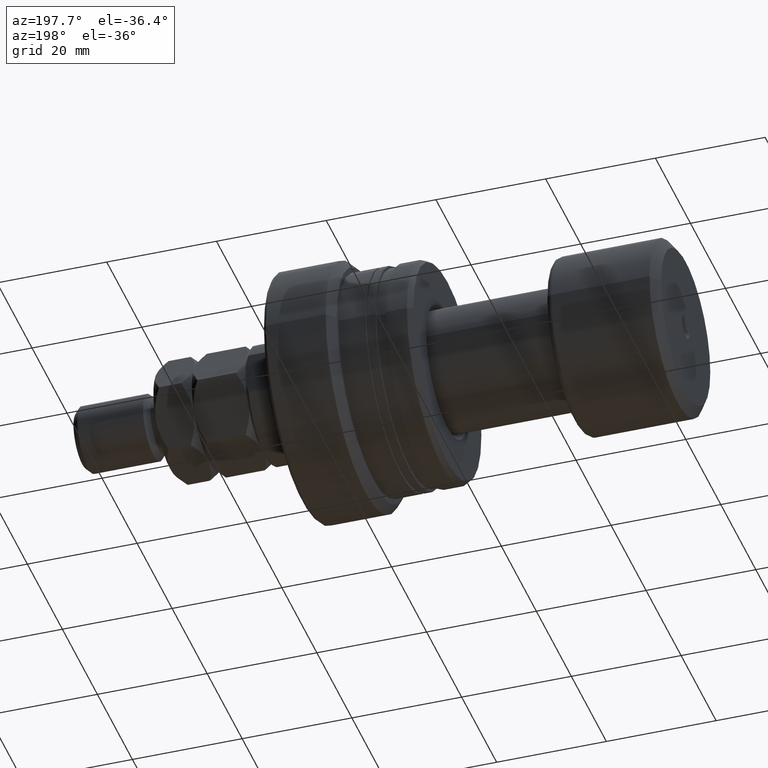
[diagram: clean part render]
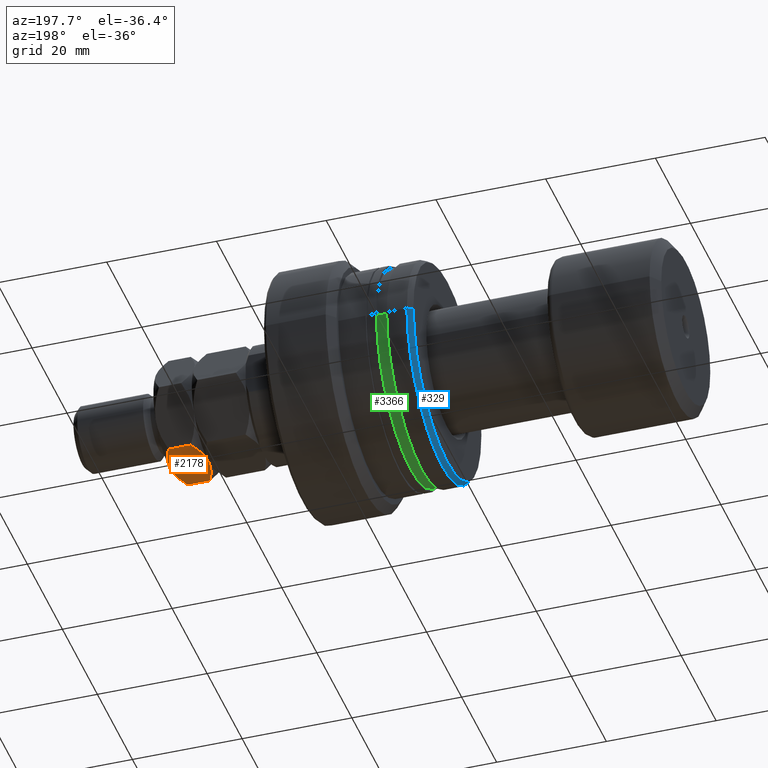
[diagram: same view with three faces highlighted in distinct colors, each labeled with its STEP entity id]
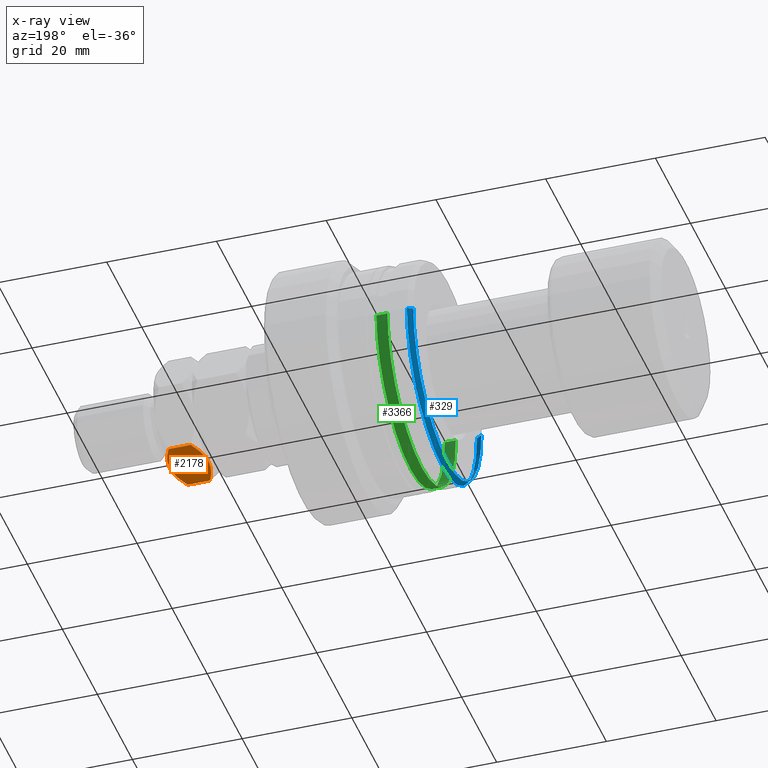
[diagram: x-ray of the same camera — body ghosted, the three highlighted faces saturated]
A machine part, auxiliary view with three faces highlighted in distinct colors.
The next image is the same camera in x-ray (body ghosted, the three faces saturated) — at least one of them is partly hidden behind the body in this view.
Their STEP definitions:

[orange] entity #2178 — the highlighted planar face has unit normal (0, -0, 1).
#1 = DIRECTION ( 'NONE',  ( 1.581383788144378447E-16, -1.000000000000000000, 0.000000000000000000 ) ) ;
#25 = DIRECTION ( 'NONE',  ( -1.000000000000000000, -1.581383788144378447E-16, 0.000000000000000000 ) ) ;
#53 = CARTESIAN_POINT ( 'NONE',  ( 9.499999999999994671, 1.502314598737158637E-15, 17.00000000000000000 ) ) ;
#84 = CARTESIAN_POINT ( 'NONE',  ( 9.499999999999992895, 5.484827557301444223, 11.46965511460288134 ) ) ;
#208 = AXIS2_PLACEMENT_3D ( 'NONE', #3439, #25, #1 ) ;
#248 = ORIENTED_EDGE ( 'NONE', *, *, #1904, .F. ) ;
#337 = CARTESIAN_POINT ( 'NONE',  ( 9.499999999999996447, -0.4761117316842318758, 17.00000000000000355 ) ) ;
#356 = PLANE ( 'NONE',  #208 ) ;
#406 = EDGE_CURVE ( 'NONE', #2852, #1414, #1776, .T. ) ;
#489 = CARTESIAN_POINT ( 'NONE',  ( 9.499999999999992895, 5.484827557301444223, 17.00000000000000000 ) ) ;
#602 = CARTESIAN_POINT ( 'NONE',  ( 9.499999999999994671, -5.484827557301442447, 15.53034488539711688 ) ) ;
#625 = CARTESIAN_POINT ( 'NONE',  ( 9.499999999999994671, -3.739300393387253951, 10.70136854772636070 ) ) ;
#642 = CARTESIAN_POINT ( 'NONE',  ( 9.499999999999994671, -5.484827557301443335, 11.46965511460288312 ) ) ;
#662 = CARTESIAN_POINT ( 'NONE',  ( 9.499999999999998224, -3.284280073076859985, 10.54188890834167758 ) ) ;
#683 = CARTESIAN_POINT ( 'NONE',  ( 9.499999999999994671, -5.058804922144361171, 11.25664379702434204 ) ) ;
#688 = ORIENTED_EDGE ( 'NONE', *, *, #3239, .F. ) ;
#696 = CARTESIAN_POINT ( 'NONE',  ( 9.499999999999996447, 0.000000000000000000, 10.00000000000000000 ) ) ;
#738 = CARTESIAN_POINT ( 'NONE',  ( 9.499999999999994671, -5.484827557301443335, 17.00000000000000000 ) ) ;
#799 = CARTESIAN_POINT ( 'NONE',  ( 9.499999999999992895, 3.284280073076856876, 16.45811109165832065 ) ) ;
#813 = VERTEX_POINT ( 'NONE', #984 ) ;
#819 = CARTESIAN_POINT ( 'NONE',  ( 9.499999999999994671, 1.895392204582990958, 16.85351563493426141 ) ) ;
#855 = LINE ( 'NONE', #489, #3984 ) ;
#892 = B_SPLINE_CURVE_WITH_KNOTS ( 'NONE', 3,
 ( #1580, #2498, #2471, #662, #625, #952, #683, #1883 ),
 .UNSPECIFIED., .F., .F.,
 ( 4, 2, 2, 4 ),
 ( 0.02139070057665824059, 0.02425837263787778211, 0.02569220866848755114, 0.02712604469909732363 ),
 .UNSPECIFIED. ) ;
#940 = B_SPLINE_CURVE_WITH_KNOTS ( 'NONE', 3,
 ( #602, #2191, #3997, #988, #2231, #1870, #3119, #3102, #337, #1854 ),
 .UNSPECIFIED., .F., .F.,
 ( 4, 2, 2, 2, 4 ),
 ( 0.01567844649877152621, 0.01710651001824320394, 0.01853457353771487820, 0.01996263705718655593, 0.02139070057665823366 ),
 .UNSPECIFIED. ) ;
#952 = CARTESIAN_POINT ( 'NONE',  ( 9.499999999999996447, -4.625461644961930574, 11.05843019788303749 ) ) ;
#968 = CARTESIAN_POINT ( 'NONE',  ( 9.499999999999992895, 5.484827557301444223, 11.46965511460288134 ) ) ;
#984 = CARTESIAN_POINT ( 'NONE',  ( 9.499999999999994671, -5.484827557301442447, 15.53034488539711688 ) ) ;
#988 = CARTESIAN_POINT ( 'NONE',  ( 9.499999999999991118, -3.733428111434933250, 16.30082488061093215 ) ) ;
#1082 = CARTESIAN_POINT ( 'NONE',  ( 9.499999999999991118, 0.4761117316842319869, 9.999999999999992895 ) ) ;
#1206 = CARTESIAN_POINT ( 'NONE',  ( 9.499999999999992895, 5.484827557301444223, 15.53034488539711866 ) ) ;
#1207 = CARTESIAN_POINT ( 'NONE',  ( 9.499999999999996447, 0.000000000000000000, 10.00000000000000000 ) ) ;
#1264 = ORIENTED_EDGE ( 'NONE', *, *, #406, .F. ) ;
#1284 = EDGE_CURVE ( 'NONE', #813, #1821, #3296, .T. ) ;
#1414 = VERTEX_POINT ( 'NONE', #1206 ) ;
#1426 = DIRECTION ( 'NONE',  ( -0.000000000000000000, -0.000000000000000000, -1.000000000000000000 ) ) ;
#1469 = DIRECTION ( 'NONE',  ( -0.000000000000000000, -0.000000000000000000, -1.000000000000000000 ) ) ;
#1580 = CARTESIAN_POINT ( 'NONE',  ( 9.499999999999996447, 0.000000000000000000, 10.00000000000000000 ) ) ;
#1637 = CARTESIAN_POINT ( 'NONE',  ( 9.499999999999992895, 5.058637179188067101, 11.25655992554617946 ) ) ;
#1668 = B_SPLINE_CURVE_WITH_KNOTS ( 'NONE', 3,
 ( #84, #1637, #1976, #3860, #3818, #1691, #2911, #3541, #1082, #696 ),
 .UNSPECIFIED., .F., .F.,
 ( 4, 2, 2, 2, 4 ),
 ( 0.01567844649877152968, 0.01710651001824320741, 0.01853457353771488514, 0.01996263705718656287, 0.02139070057665824059 ),
 .UNSPECIFIED. ) ;
#1691 = CARTESIAN_POINT ( 'NONE',  ( 9.499999999999994671, 2.369688663400943085, 10.28128848203000878 ) ) ;
#1776 = B_SPLINE_CURVE_WITH_KNOTS ( 'NONE', 3,
 ( #3527, #1994, #819, #799, #3605, #3561, #2611, #2060 ),
 .UNSPECIFIED., .F., .F.,
 ( 4, 2, 2, 4 ),
 ( 0.02139070057665823366, 0.02425837263787777170, 0.02569220866848754420, 0.02712604469909731322 ),
 .UNSPECIFIED. ) ;
#1786 = VERTEX_POINT ( 'NONE', #968 ) ;
#1821 = VERTEX_POINT ( 'NONE', #642 ) ;
#1854 = CARTESIAN_POINT ( 'NONE',  ( 9.499999999999994671, 1.502314598737158637E-15, 17.00000000000000000 ) ) ;
#1870 = CARTESIAN_POINT ( 'NONE',  ( 9.499999999999996447, -2.369688663400942197, 16.71871151796999300 ) ) ;
#1883 = CARTESIAN_POINT ( 'NONE',  ( 9.499999999999994671, -5.484827557301443335, 11.46965511460288312 ) ) ;
#1897 = EDGE_CURVE ( 'NONE', #2597, #1821, #892, .T. ) ;
#1904 = EDGE_CURVE ( 'NONE', #813, #2852, #940, .T. ) ;
#1922 = ORIENTED_EDGE ( 'NONE', *, *, #1284, .T. ) ;
#1965 = EDGE_CURVE ( 'NONE', #1786, #2597, #1668, .T. ) ;
#1976 = CARTESIAN_POINT ( 'NONE',  ( 9.499999999999992895, 4.621752210278245343, 11.05676471017157958 ) ) ;
#1994 = CARTESIAN_POINT ( 'NONE',  ( 9.499999999999998224, 0.9560725362376377712, 17.00000000000000000 ) ) ;
#2060 = CARTESIAN_POINT ( 'NONE',  ( 9.499999999999992895, 5.484827557301444223, 15.53034488539711866 ) ) ;
#2121 = ORIENTED_EDGE ( 'NONE', *, *, #1965, .F. ) ;
#2178 = ADVANCED_FACE ( 'NONE', ( #2488 ), #356, .F. ) ;
#2191 = CARTESIAN_POINT ( 'NONE',  ( 9.499999999999996447, -5.058637179188067101, 15.74344007445382232 ) ) ;
#2231 = CARTESIAN_POINT ( 'NONE',  ( 9.499999999999992895, -3.283585621344904393, 16.45808212840072215 ) ) ;
#2471 = CARTESIAN_POINT ( 'NONE',  ( 9.499999999999991118, -1.895392204582992068, 10.14648436506573681 ) ) ;
#2488 = FACE_OUTER_BOUND ( 'NONE', #3884, .T. ) ;
#2498 = CARTESIAN_POINT ( 'NONE',  ( 9.499999999999996447, -0.9560725362376376602, 9.999999999999994671 ) ) ;
#2597 = VERTEX_POINT ( 'NONE', #1207 ) ;
#2611 = CARTESIAN_POINT ( 'NONE',  ( 9.499999999999989342, 5.058804922144356730, 15.74335620297565441 ) ) ;
#2796 = ORIENTED_EDGE ( 'NONE', *, *, #1897, .F. ) ;
#2852 = VERTEX_POINT ( 'NONE', #53 ) ;
#2911 = CARTESIAN_POINT ( 'NONE',  ( 9.499999999999992895, 1.905622789724485067, 10.17795958574150283 ) ) ;
#3102 = CARTESIAN_POINT ( 'NONE',  ( 9.499999999999992895, -0.9601762266066392604, 16.96304860489112087 ) ) ;
#3119 = CARTESIAN_POINT ( 'NONE',  ( 9.499999999999994671, -1.905622789724483956, 16.82204041425849539 ) ) ;
#3239 = EDGE_CURVE ( 'NONE', #1414, #1786, #855, .T. ) ;
#3296 = LINE ( 'NONE', #738, #3708 ) ;
#3439 = CARTESIAN_POINT ( 'NONE',  ( 9.499999999999994671, -5.484827557301443335, 17.00000000000000000 ) ) ;
#3527 = CARTESIAN_POINT ( 'NONE',  ( 9.499999999999994671, 1.502314598737158637E-15, 17.00000000000000000 ) ) ;
#3541 = CARTESIAN_POINT ( 'NONE',  ( 9.499999999999994671, 0.9601762266066407037, 10.03695139510887380 ) ) ;
#3561 = CARTESIAN_POINT ( 'NONE',  ( 9.499999999999994671, 4.625461644961926133, 15.94156980211696251 ) ) ;
#3605 = CARTESIAN_POINT ( 'NONE',  ( 9.499999999999992895, 3.739300393387251731, 16.29863145227364640 ) ) ;
#3708 = VECTOR ( 'NONE', #1426, 1000.000000000000000 ) ;
#3818 = CARTESIAN_POINT ( 'NONE',  ( 9.499999999999994671, 3.283585621344905725, 10.54191787159927607 ) ) ;
#3860 = CARTESIAN_POINT ( 'NONE',  ( 9.499999999999991118, 3.733428111434938135, 10.69917511938905896 ) ) ;
#3884 = EDGE_LOOP ( 'NONE', ( #2121, #688, #1264, #248, #1922, #2796 ) ) ;
#3984 = VECTOR ( 'NONE', #1469, 1000.000000000000000 ) ;
#3997 = CARTESIAN_POINT ( 'NONE',  ( 9.499999999999992895, -4.621752210278242678, 15.94323528982841864 ) ) ;

[blue] entity #329 — the highlighted conical surface has half-angle 30 deg.
#105 = FACE_OUTER_BOUND ( 'NONE', #272, .T. ) ;
#138 = VECTOR ( 'NONE', #2626, 1000.000000000000000 ) ;
#162 = LINE ( 'NONE', #2362, #539 ) ;
#272 = EDGE_LOOP ( 'NONE', ( #4010, #4016, #3897, #1507 ) ) ;
#329 = ADVANCED_FACE ( 'NONE', ( #105 ), #450, .T. ) ;
#450 = CONICAL_SURFACE ( 'NONE', #2918, 19.42264973081047685, 0.5235987755983003700 ) ;
#534 = CARTESIAN_POINT ( 'NONE',  ( -26.50000000000015277, -5.042119241098522056E-15, 0.000000000000000000 ) ) ;
#539 = VECTOR ( 'NONE', #2382, 1000.000000000000114 ) ;
#594 = DIRECTION ( 'NONE',  ( -1.387778780781445676E-15, -1.000000000000000000, 0.000000000000000000 ) ) ;
#684 = DIRECTION ( 'NONE',  ( 1.250402442523061283E-15, 1.000000000000000000, 0.000000000000000000 ) ) ;
#698 = DIRECTION ( 'NONE',  ( 1.000000000000000000, -1.333885945136072597E-15, 0.000000000000000000 ) ) ;
#722 = EDGE_CURVE ( 'NONE', #2101, #3168, #2215, .T. ) ;
#965 = EDGE_CURVE ( 'NONE', #3663, #2854, #1108, .T. ) ;
#1108 = CIRCLE ( 'NONE', #3059, 20.00000000000000000 ) ;
#1297 = CARTESIAN_POINT ( 'NONE',  ( -26.50000000000018119, -20.00000000000000355, 2.449293598294706513E-15 ) ) ;
#1507 = ORIENTED_EDGE ( 'NONE', *, *, #965, .T. ) ;
#1576 = DIRECTION ( 'NONE',  ( -1.000000000000000000, 1.333885945136072597E-15, -0.000000000000000000 ) ) ;
#1604 = CARTESIAN_POINT ( 'NONE',  ( -27.49999999999996803, -3.708233295962692034E-15, 0.000000000000000000 ) ) ;
#1714 = CARTESIAN_POINT ( 'NONE',  ( -27.49999999999994316, 19.42264973081047330, 0.000000000000000000 ) ) ;
#2101 = VERTEX_POINT ( 'NONE', #1714 ) ;
#2188 = CARTESIAN_POINT ( 'NONE',  ( -27.49999999999996803, -3.708233295962692034E-15, 0.000000000000000000 ) ) ;
#2215 = CIRCLE ( 'NONE', #3056, 19.42264973081047685 ) ;
#2362 = CARTESIAN_POINT ( 'NONE',  ( -27.49999999999994316, 19.42264973081047330, 0.000000000000000000 ) ) ;
#2382 = DIRECTION ( 'NONE',  ( 0.8660254037844384856, 0.5000000000000002220, 0.000000000000000000 ) ) ;
#2402 = DIRECTION ( 'NONE',  ( -1.000000000000000000, 1.333885945136072597E-15, -0.000000000000000000 ) ) ;
#2420 = EDGE_CURVE ( 'NONE', #3168, #2854, #3153, .T. ) ;
#2504 = EDGE_CURVE ( 'NONE', #2101, #3663, #162, .T. ) ;
#2626 = DIRECTION ( 'NONE',  ( 0.8660254037844372643, -0.5000000000000024425, 6.123233995736782060E-17 ) ) ;
#2725 = CARTESIAN_POINT ( 'NONE',  ( -27.49999999999999289, -19.42264973081048041, 2.413941090337216083E-15 ) ) ;
#2854 = VERTEX_POINT ( 'NONE', #1297 ) ;
#2890 = CARTESIAN_POINT ( 'NONE',  ( -27.49999999999999289, -19.42264973081048041, 2.378588582379725653E-15 ) ) ;
#2918 = AXIS2_PLACEMENT_3D ( 'NONE', #1604, #698, #684 ) ;
#3056 = AXIS2_PLACEMENT_3D ( 'NONE', #2188, #1576, #3167 ) ;
#3059 = AXIS2_PLACEMENT_3D ( 'NONE', #534, #2402, #594 ) ;
#3153 = LINE ( 'NONE', #2890, #138 ) ;
#3167 = DIRECTION ( 'NONE',  ( -1.250402442523061283E-15, -1.000000000000000000, 0.000000000000000000 ) ) ;
#3168 = VERTEX_POINT ( 'NONE', #2725 ) ;
#3644 = CARTESIAN_POINT ( 'NONE',  ( -26.50000000000012434, 19.99999999999999645, 0.000000000000000000 ) ) ;
#3663 = VERTEX_POINT ( 'NONE', #3644 ) ;
#3897 = ORIENTED_EDGE ( 'NONE', *, *, #2504, .T. ) ;
#4010 = ORIENTED_EDGE ( 'NONE', *, *, #2420, .F. ) ;
#4016 = ORIENTED_EDGE ( 'NONE', *, *, #722, .F. ) ;

[green] entity #3366 — the highlighted cylindrical surface (partial cylindrical patch) has radius 19.5 mm, axis along (-1, 0, 0).
#5 = CIRCLE ( 'NONE', #129, 19.49999999999998224 ) ;
#19 = EDGE_LOOP ( 'NONE', ( #672, #3754, #3970, #1767 ) ) ;
#126 = CIRCLE ( 'NONE', #2735, 19.49999999999998224 ) ;
#129 = AXIS2_PLACEMENT_3D ( 'NONE', #3560, #3821, #2975 ) ;
#223 = VECTOR ( 'NONE', #644, 1000.000000000000000 ) ;
#243 = VERTEX_POINT ( 'NONE', #3045 ) ;
#359 = VERTEX_POINT ( 'NONE', #2898 ) ;
#447 = EDGE_CURVE ( 'NONE', #2157, #243, #3219, .T. ) ;
#644 = DIRECTION ( 'NONE',  ( -1.000000000000000000, 1.333885945136072597E-15, -0.000000000000000000 ) ) ;
#672 = ORIENTED_EDGE ( 'NONE', *, *, #3216, .F. ) ;
#687 = EDGE_CURVE ( 'NONE', #2522, #2157, #126, .T. ) ;
#1128 = AXIS2_PLACEMENT_3D ( 'NONE', #3817, #2322, #2629 ) ;
#1299 = EDGE_CURVE ( 'NONE', #359, #243, #5, .T. ) ;
#1559 = VECTOR ( 'NONE', #1758, 1000.000000000000000 ) ;
#1587 = LINE ( 'NONE', #3126, #223 ) ;
#1632 = CARTESIAN_POINT ( 'NONE',  ( -20.79999999999998650, -1.264526912837436104E-14, 0.000000000000000000 ) ) ;
#1758 = DIRECTION ( 'NONE',  ( -1.000000000000000000, 1.333885945136072597E-15, -0.000000000000000000 ) ) ;
#1767 = ORIENTED_EDGE ( 'NONE', *, *, #1299, .F. ) ;
#2029 = CYLINDRICAL_SURFACE ( 'NONE', #1128, 19.49999999999998224 ) ;
#2157 = VERTEX_POINT ( 'NONE', #2995 ) ;
#2245 = DIRECTION ( 'NONE',  ( -1.000000000000000000, 1.333885945136072597E-15, -0.000000000000000000 ) ) ;
#2322 = DIRECTION ( 'NONE',  ( -1.000000000000000000, 1.333885945136072597E-15, -0.000000000000000000 ) ) ;
#2522 = VERTEX_POINT ( 'NONE', #3553 ) ;
#2629 = DIRECTION ( 'NONE',  ( -1.245442495573093370E-15, -1.000000000000000000, 0.000000000000000000 ) ) ;
#2735 = AXIS2_PLACEMENT_3D ( 'NONE', #1632, #2245, #3477 ) ;
#2898 = CARTESIAN_POINT ( 'NONE',  ( -22.80878161770233703, 19.49999999999997158, 2.388061258337336967E-15 ) ) ;
#2913 = CARTESIAN_POINT ( 'NONE',  ( -30.28002276692734895, -19.49999999999998224, 0.000000000000000000 ) ) ;
#2975 = DIRECTION ( 'NONE',  ( -1.245442495573093370E-15, -1.000000000000000000, 0.000000000000000000 ) ) ;
#2995 = CARTESIAN_POINT ( 'NONE',  ( -20.80000000000000782, -19.49999999999999645, 0.000000000000000000 ) ) ;
#3045 = CARTESIAN_POINT ( 'NONE',  ( -22.80878161770238677, -19.49999999999999289, 0.000000000000000000 ) ) ;
#3126 = CARTESIAN_POINT ( 'NONE',  ( -30.28002276692729922, 19.49999999999998224, 2.388061258337336572E-15 ) ) ;
#3216 = EDGE_CURVE ( 'NONE', #2522, #359, #1587, .T. ) ;
#3219 = LINE ( 'NONE', #2913, #1559 ) ;
#3366 = ADVANCED_FACE ( 'NONE', ( #3573 ), #2029, .T. ) ;
#3477 = DIRECTION ( 'NONE',  ( -1.245442495573093370E-15, -1.000000000000000000, 0.000000000000000000 ) ) ;
#3553 = CARTESIAN_POINT ( 'NONE',  ( -20.79999999999996163, 19.49999999999996803, 2.388061258337336572E-15 ) ) ;
#3560 = CARTESIAN_POINT ( 'NONE',  ( -22.80878161770236190, -9.965783561673457325E-15, 0.000000000000000000 ) ) ;
#3573 = FACE_OUTER_BOUND ( 'NONE', #19, .T. ) ;
#3754 = ORIENTED_EDGE ( 'NONE', *, *, #687, .T. ) ;
#3817 = CARTESIAN_POINT ( 'NONE',  ( -30.28002276692732408, 0.000000000000000000, 0.000000000000000000 ) ) ;
#3821 = DIRECTION ( 'NONE',  ( -1.000000000000000000, 1.333885945136072597E-15, -0.000000000000000000 ) ) ;
#3970 = ORIENTED_EDGE ( 'NONE', *, *, #447, .T. ) ;